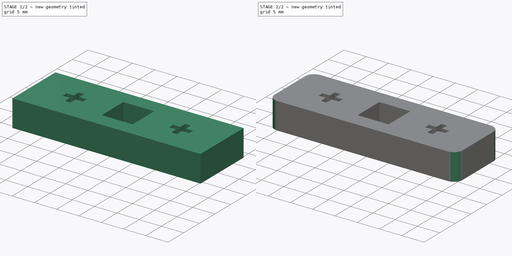
[diagram: build sequence overview — one tinted view per stage of 2, left to right]
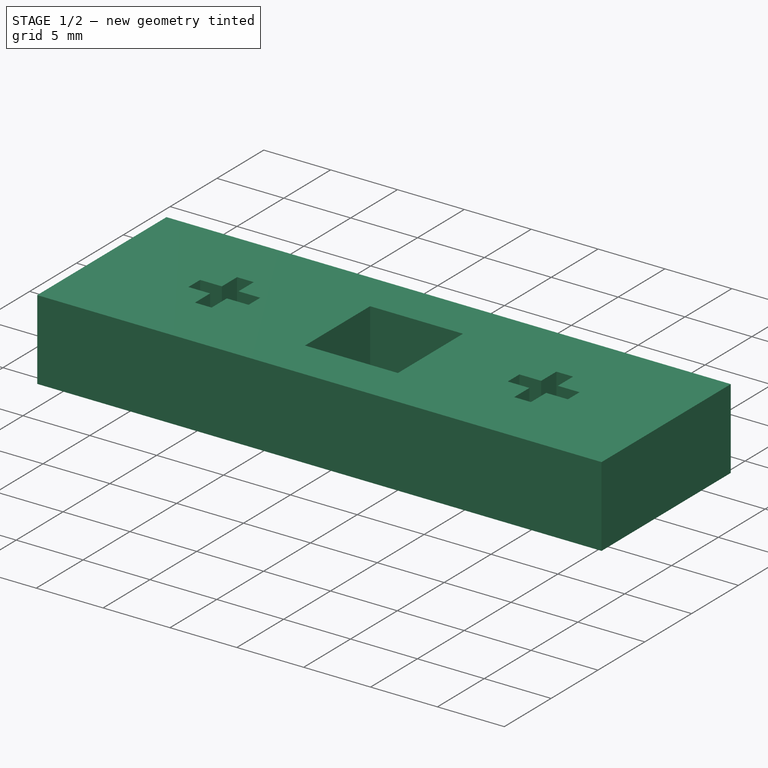
[diagram: stage 1 of 2 — iso view after this stage's code; geometry added in this stage tinted green]
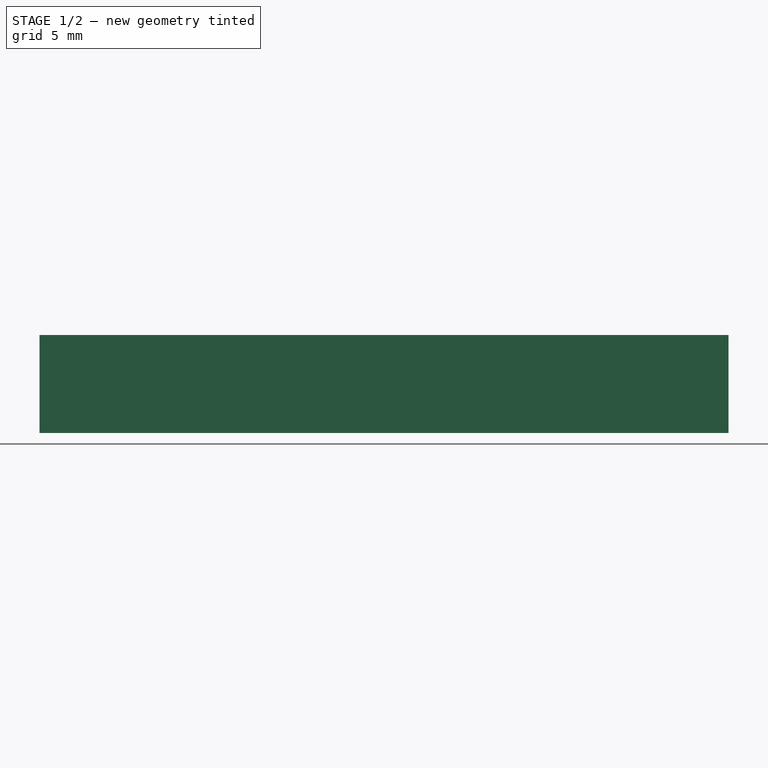
[diagram: stage 1 of 2 — front view after this stage's code; geometry added in this stage tinted green]
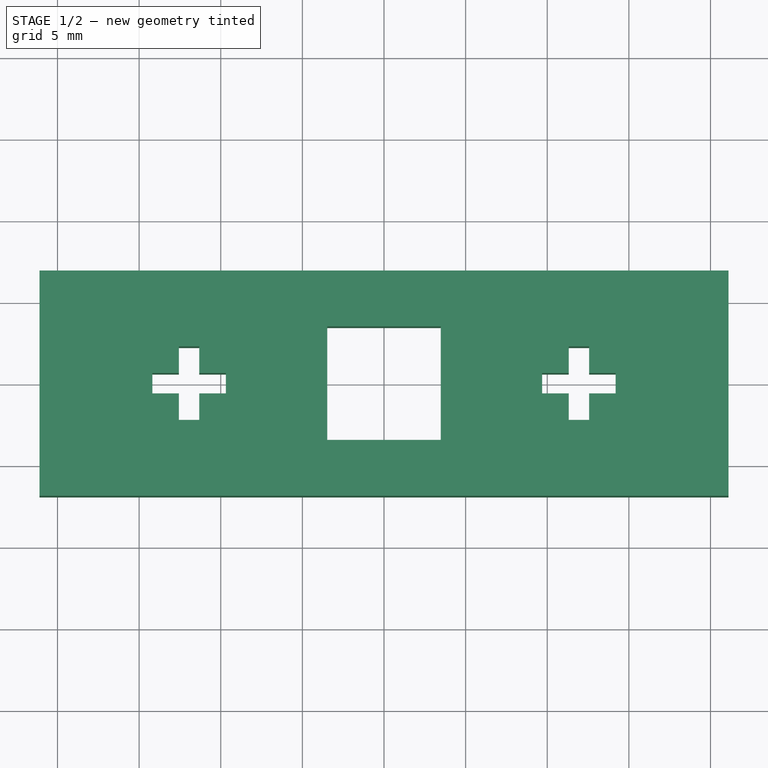
[diagram: stage 1 of 2 — top view after this stage's code; geometry added in this stage tinted green]
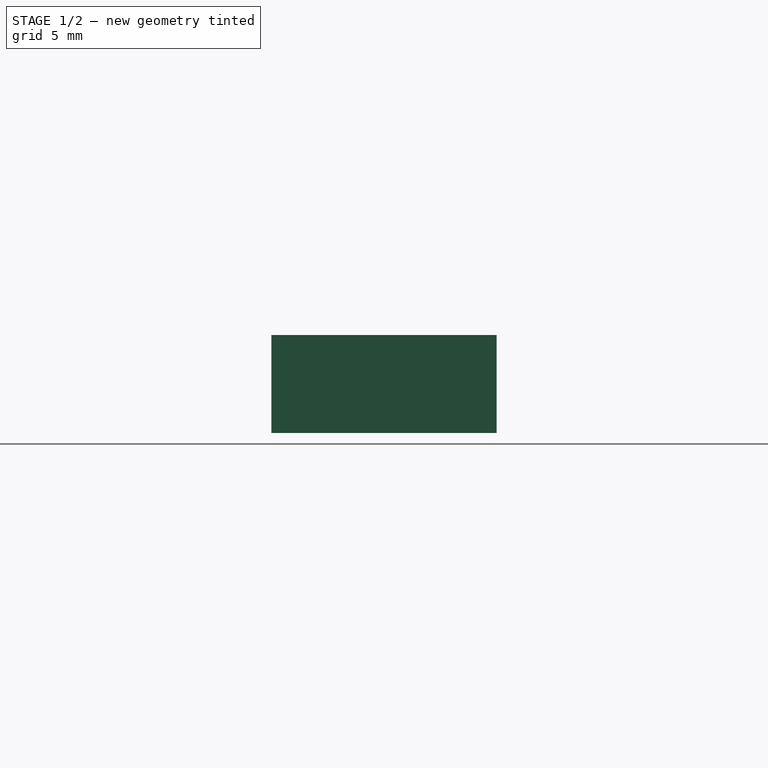
[diagram: stage 1 of 2 — right view after this stage's code; geometry added in this stage tinted green]
FCSTD DOCUMENT  (FreeCAD 1.0R39109 (Git))
Label: StackpoleXLLeftShiftStabilizerAdapter
License: All rights reserved
LicenseURL: http://en.wikipedia.org/wiki/All_rights_reserved
objects: Sketcher::SketchObject×1, PartDesign::Pad×1, PartDesign::Fillet×1, PartDesign::Body×1
note: 9 computed .brp shape members not serialized (recipe doc carries the construction recipe); baked Part::Feature solids carry a one-line shape summary decoded from their .brp

FEATURE [Sketcher::SketchObject] Sketch
  ArcFitTolerance = 0
  AttachmentSupport = -> [XY_Plane]
  FullyConstrained = true
  MakeInternals = false
  MapMode = 5
  sketch-geometry (34):
    g0: LineSegment StartX=-21.1 StartY=-6.9 StartZ=0 EndX=-21.1 EndY=6.9 EndZ=0
    g1: LineSegment StartX=-21.1 StartY=6.9 StartZ=0 EndX=21.1 EndY=6.9 EndZ=0
    g2: LineSegment StartX=21.1 StartY=6.9 StartZ=0 EndX=21.1 EndY=-6.9 EndZ=0
    g3: LineSegment StartX=21.1 StartY=-6.9 StartZ=0 EndX=-21.1 EndY=-6.9 EndZ=0
    g4: GeomPoint [constr] X=0 Y=0 Z=0
    g5: LineSegment StartX=-3.475 StartY=-3.475 StartZ=0 EndX=-3.475 EndY=3.475 EndZ=0
    g6: LineSegment StartX=-3.475 StartY=3.475 StartZ=0 EndX=3.475 EndY=3.475 EndZ=0
    g7: LineSegment StartX=3.475 StartY=3.475 StartZ=0 EndX=3.475 EndY=-3.475 EndZ=0
    g8: LineSegment StartX=3.475 StartY=-3.475 StartZ=0 EndX=-3.475 EndY=-3.475 EndZ=0
    g9: GeomPoint [constr] X=0 Y=0 Z=0
    g10: LineSegment StartX=9.688 StartY=0.625 StartZ=0 EndX=9.688 EndY=-0.625 EndZ=0
    g11: LineSegment StartX=9.688 StartY=-0.625 StartZ=0 EndX=11.313 EndY=-0.625 EndZ=0
    g12: LineSegment StartX=11.313 StartY=-0.625 StartZ=0 EndX=11.313 EndY=-2.25 EndZ=0
    g13: LineSegment StartX=11.313 StartY=-2.25 StartZ=0 EndX=12.563 EndY=-2.25 EndZ=0
    g14: LineSegment StartX=12.563 StartY=-2.25 StartZ=0 EndX=12.563 EndY=-0.625 EndZ=0
    g15: LineSegment StartX=12.563 StartY=-0.625 StartZ=0 EndX=14.188 EndY=-0.625 EndZ=0
    g16: LineSegment StartX=14.188 StartY=-0.625 StartZ=0 EndX=14.188 EndY=0.625 EndZ=0
    g17: LineSegment StartX=14.188 StartY=0.625 StartZ=0 EndX=12.563 EndY=0.625 EndZ=0
    g18: LineSegment StartX=12.563 StartY=0.625 StartZ=0 EndX=12.563 EndY=2.25 EndZ=0
    g19: LineSegment StartX=12.563 StartY=2.25 StartZ=0 EndX=11.313 EndY=2.25 EndZ=0
    g20: LineSegment StartX=11.313 StartY=2.25 StartZ=0 EndX=11.313 EndY=0.625 EndZ=0
    g21: LineSegment StartX=11.313 StartY=0.625 StartZ=0 EndX=9.688 EndY=0.625 EndZ=0
    g22: LineSegment StartX=-14.188 StartY=0.625 StartZ=0 EndX=-14.188 EndY=-0.625 EndZ=0
    g23: LineSegment StartX=-14.188 StartY=-0.625 StartZ=0 EndX=-12.563 EndY=-0.625 EndZ=0
    g24: LineSegment StartX=-12.563 StartY=-0.625 StartZ=0 EndX=-12.563 EndY=-2.25 EndZ=0
    g25: LineSegment StartX=-12.563 StartY=-2.25 StartZ=0 EndX=-11.313 EndY=-2.25 EndZ=0
    g26: LineSegment StartX=-11.313 StartY=-2.25 StartZ=0 EndX=-11.313 EndY=-0.625 EndZ=0
    g27: LineSegment StartX=-11.313 StartY=-0.625 StartZ=0 EndX=-9.688 EndY=-0.625 EndZ=0
    g28: LineSegment StartX=-9.688 StartY=-0.625 StartZ=0 EndX=-9.688 EndY=0.625 EndZ=0
    g29: LineSegment StartX=-9.688 StartY=0.625 StartZ=0 EndX=-11.313 EndY=0.625 EndZ=0
    g30: LineSegment StartX=-11.313 StartY=0.625 StartZ=0 EndX=-11.313 EndY=2.25 EndZ=0
    g31: LineSegment StartX=-11.313 StartY=2.25 StartZ=0 EndX=-12.563 EndY=2.25 EndZ=0
    g32: LineSegment StartX=-12.563 StartY=2.25 StartZ=0 EndX=-12.563 EndY=0.625 EndZ=0
    g33: LineSegment StartX=-12.563 StartY=0.625 StartZ=0 EndX=-14.188 EndY=0.625 EndZ=0
  constraints (93):
    c: Coincident(g0,g1)
    c: Coincident(g1,g2)
    c: Coincident(g2,g3)
    c: Coincident(g3,g0)
    c: Horizontal(g1)
    c: Horizontal(g3)
    c: Vertical(g0)
    c: Vertical(g2)
    c: Symmetric(g1,g0,g4)
    c: Coincident(g5,g6)
    c: Coincident(g6,g7)
    c: Coincident(g7,g8)
    c: Coincident(g8,g5)
    c: Horizontal(g6)
    c: Horizontal(g8)
    c: Vertical(g5)
    c: Vertical(g7)
    c: Symmetric(g6,g5,g9)
    c: Coincident(g9,g4)
    c: Equal(g6,g7)
    c: DistanceX(g3,g3) = 42.2
    c: DistanceY(g7,g7) = 6.95
    c: DistanceY(g2,g2) = 13.8
    c: Coincident(g10,g11)
    c: Horizontal(g11)
    c: Coincident(g11,g12)
    c: Vertical(g12)
    c: Coincident(g12,g13)
    c: Horizontal(g13)
    c: Coincident(g13,g14)
    c: Vertical(g14)
    c: Coincident(g14,g15)
    c: Horizontal(g15)
    c: Coincident(g15,g16)
    c: Vertical(g16)
    c: Coincident(g16,g17)
    c: Horizontal(g17)
    c: Coincident(g17,g18)
    c: Vertical(g18)
    c: Coincident(g18,g19)
    c: Horizontal(g19)
    c: Coincident(g19,g20)
    c: Vertical(g20)
    c: Coincident(g20,g21)
    c: Coincident(g21,g10)
    c: Horizontal(g21)
    c: Equal(g19,g16)
    c: Equal(g19,g13)
    c: Equal(g21,g17)
    c: Equal(g20,g21)
    c: Equal(g21,g12)
    c: Equal(g21,g11)
    c: Horizontal(g20,g17)
    c: DistanceX(g19,g19) = 1.25
    c: DistanceX(g10,g16) = 4.5
    c: Symmetric(g10,g10,g-1)
    c: Coincident(g22,g23)
    c: Horizontal(g23)
    c: Coincident(g23,g24)
    c: Vertical(g24)
    c: Coincident(g24,g25)
    c: Horizontal(g25)
    c: Coincident(g25,g26)
    c: Vertical(g26)
    c: Coincident(g26,g27)
    c: Horizontal(g27)
    c: Coincident(g27,g28)
    c: Coincident(g28,g29)
    c: Horizontal(g29)
    c: Coincident(g29,g30)
    c: Vertical(g30)
    c: Coincident(g30,g31)
    c: Horizontal(g31)
    c: Coincident(g31,g32)
    c: Vertical(g32)
    c: Coincident(g32,g33)
    c: Coincident(g33,g22)
    c: Horizontal(g33)
    c: Equal(g31,g28)
    c: Equal(g31,g22)
    c: Equal(g31,g25)
    c: Equal(g33,g29)
    c: Equal(g32,g33)
    c: Equal(g33,g24)
    c: Equal(g33,g23)
    c: Horizontal(g32,g29)
    c: Equal(g19,g31) = 2.3
    c: DistanceX(g22,g28) = 4.5
    c: Horizontal(g23,g26)
    c: Symmetric(g28,g27,g-1)
    c: DistanceX(g25,g13) = 23.876
    c: Symmetric(g28,g10,g4)
    c: Coincident(g4,g-1)
FEATURE [PartDesign::Pad] Pad
  Direction = (0,0,1)
  Length = 6
  Length2 = 10
  Profile = -> Sketch
  ReferenceAxis = -> Sketch [N_Axis]
  Suppressed = false
  Type = 0
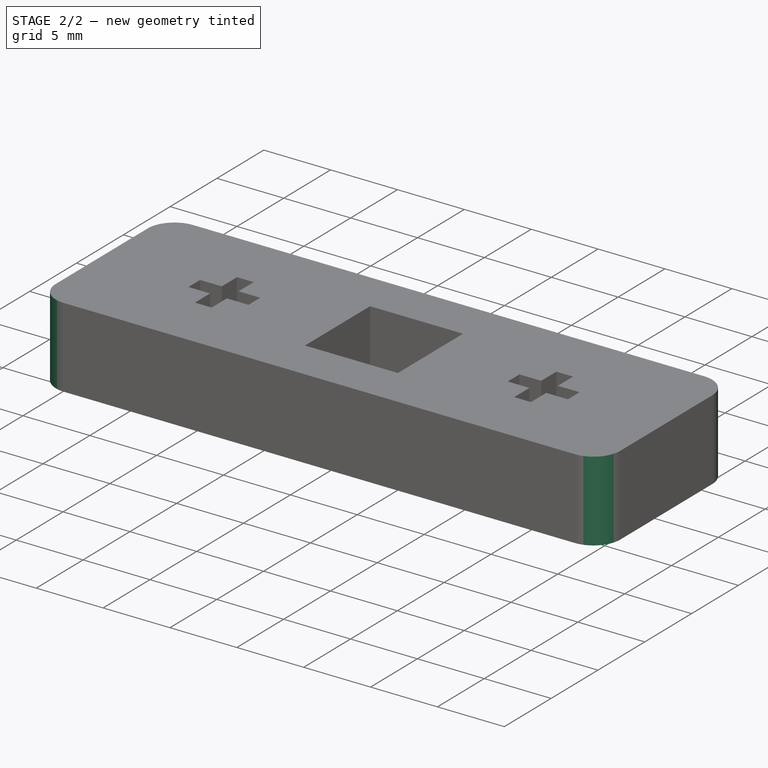
[diagram: stage 2 of 2 — iso view after this stage's code; geometry added in this stage tinted green]
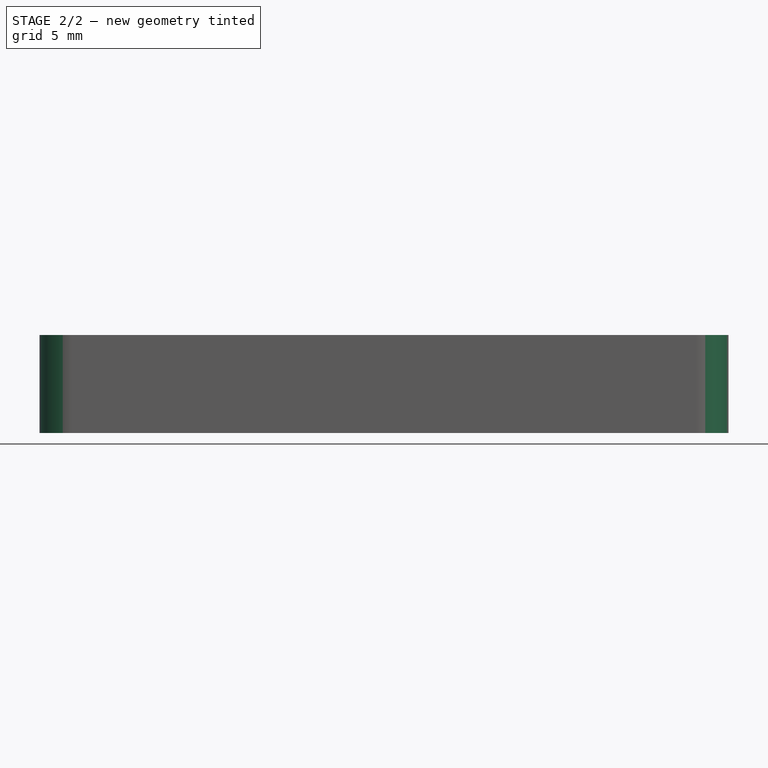
[diagram: stage 2 of 2 — front view after this stage's code; geometry added in this stage tinted green]
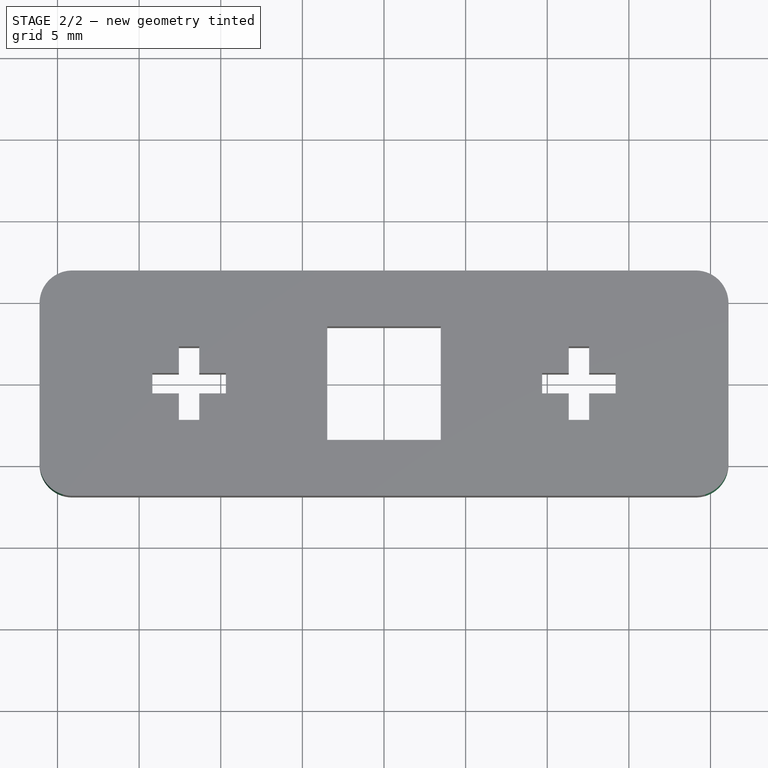
[diagram: stage 2 of 2 — top view after this stage's code; geometry added in this stage tinted green]
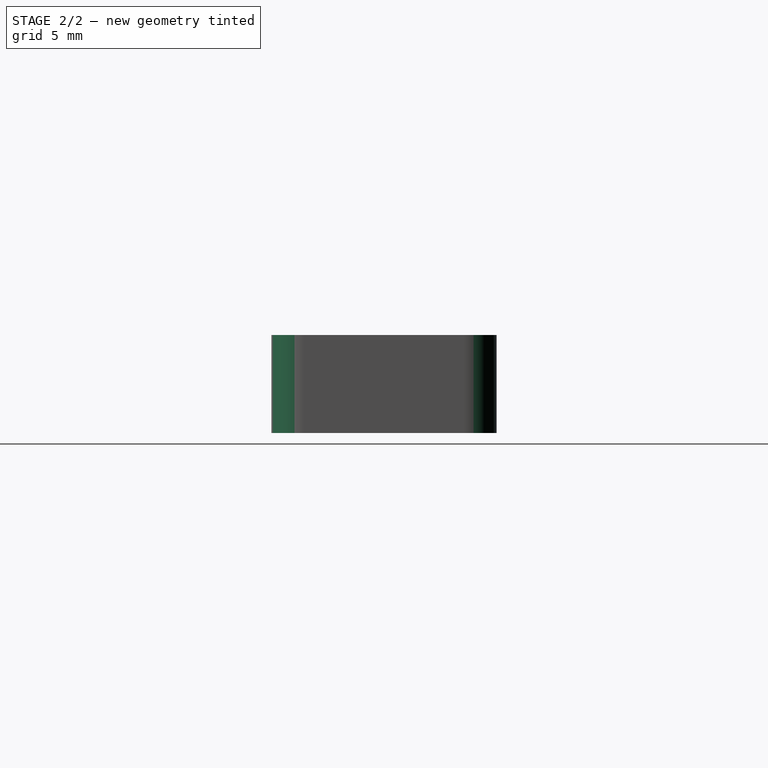
[diagram: stage 2 of 2 — right view after this stage's code; geometry added in this stage tinted green]
FEATURE [PartDesign::Fillet] Fillet
  Base = -> Pad [Edge8,Edge5,Edge1,Edge2]
  BaseFeature = -> Pad
  Radius = 2
  SupportTransform = false
  Suppressed = false
  UseAllEdges = false
FEATURE [PartDesign::Body] Body  label="StackpoleXLLeftShiftStabilizerAdapterBody"
  AllowCompound = false
  Group = -> [Sketch,Pad,Fillet]
  Origin = -> Origin
  Tip = -> Fillet
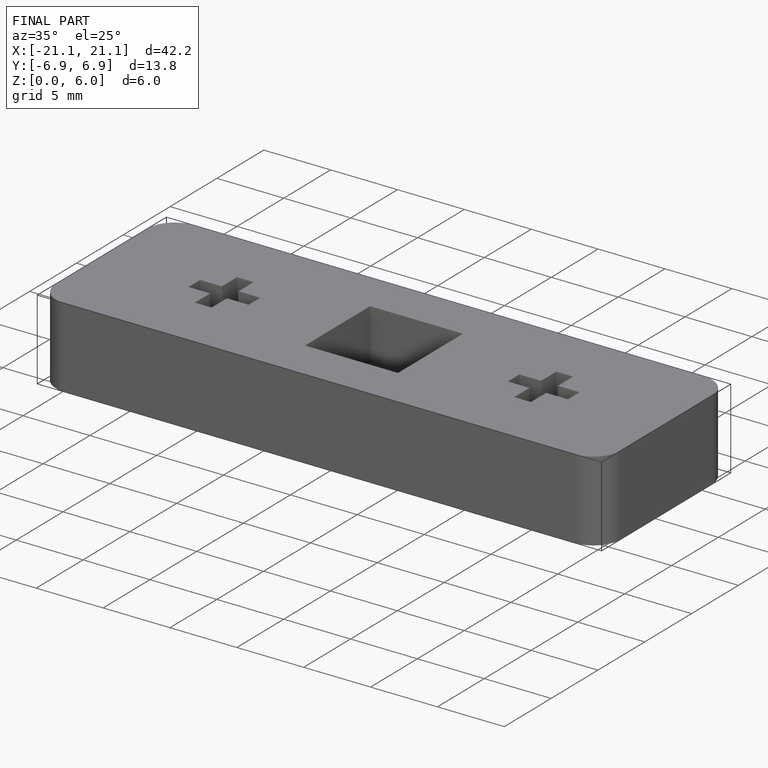
[diagram: finished part — iso view with bounding-box wireframe]
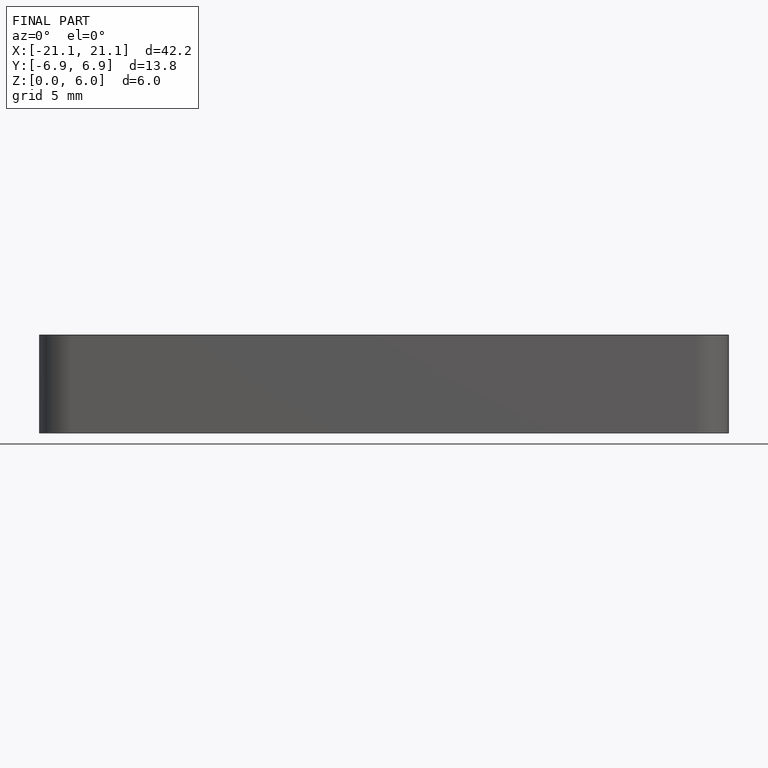
[diagram: finished part — front view with bounding-box wireframe]
